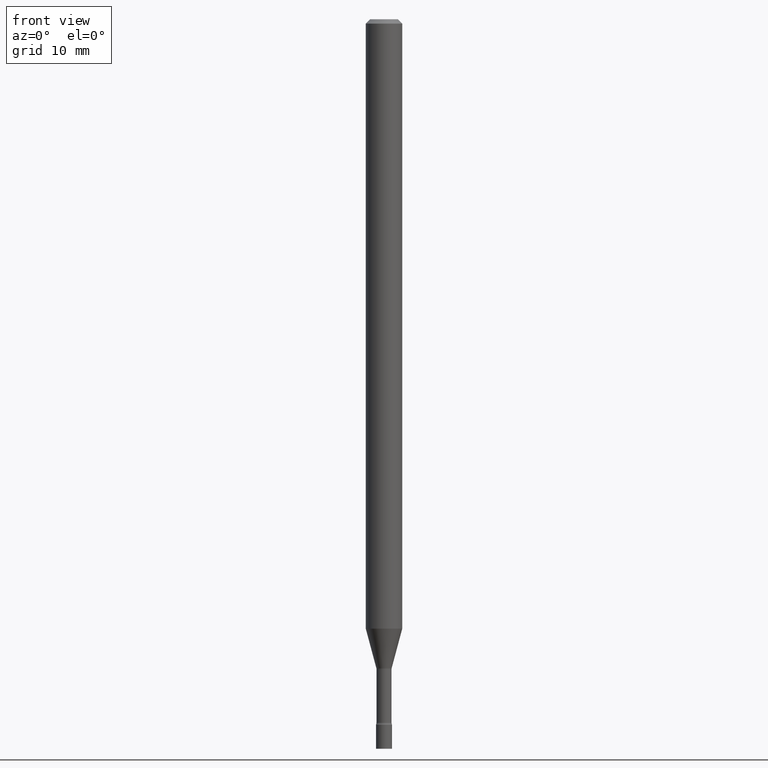
[diagram: clean part render]
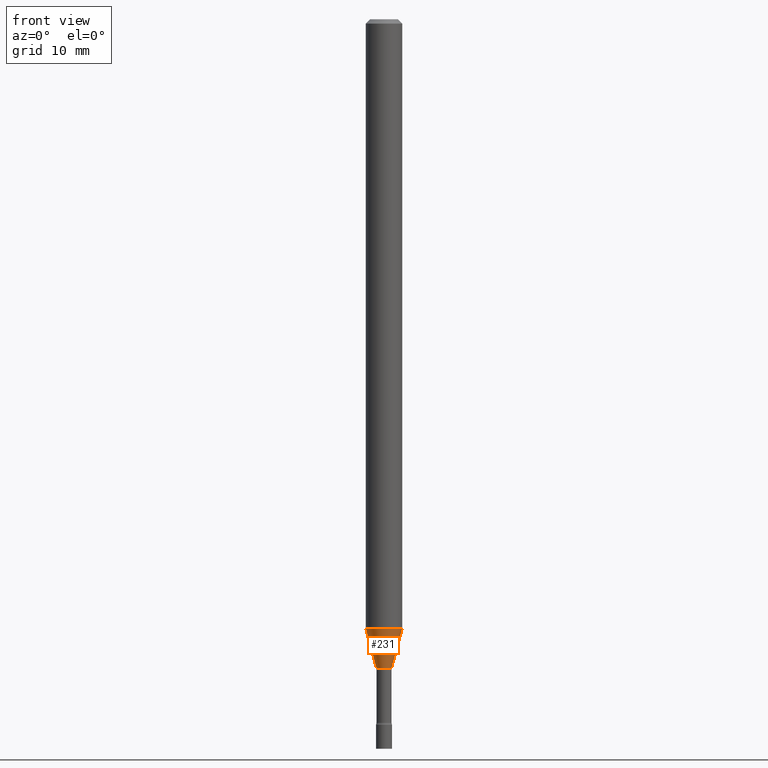
[diagram: same view with one face highlighted and labeled with its STEP entity id]
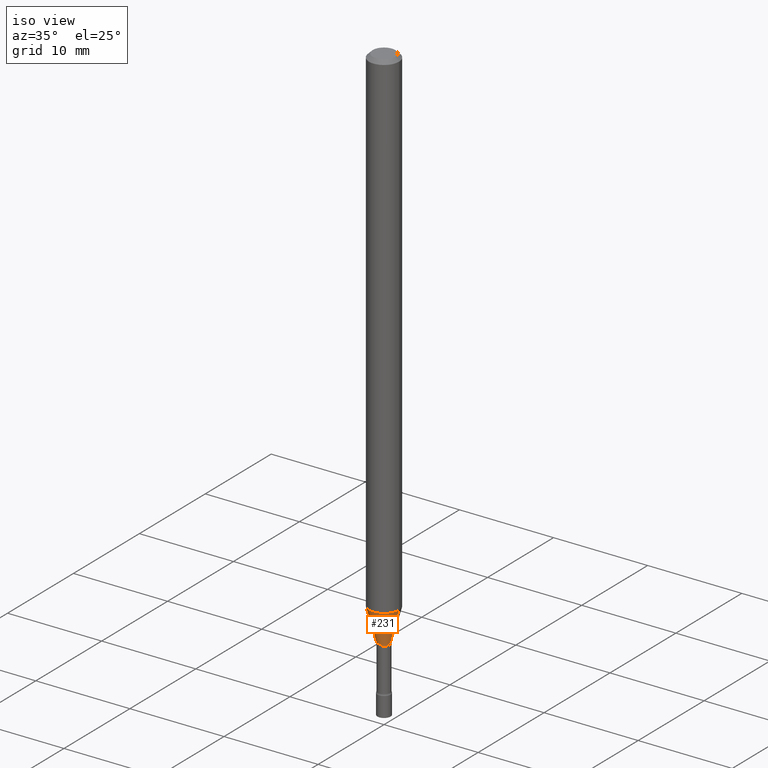
[diagram: same view with one face highlighted and labeled with its STEP entity id]
A machine part, front view. The second image highlights one B-rep face of the part: STEP entity #231.
A second angle (iso view) of the same face is appended — the face is thin or edge-on in the first view.
In plain terms, the highlighted conical surface has half-angle 15 deg.
Its self-contained STEP definition (entity closure, byte-faithful):
#33 = LINE ( 'NONE', #195, #482 ) ;
#42 = DIRECTION ( 'NONE',  ( 1.000000000000000000, -6.982962677686256455E-15, 0.000000000000000000 ) ) ;
#63 = VECTOR ( 'NONE', #118, 39.37007874015748143 ) ;
#87 = EDGE_CURVE ( 'NONE', #418, #493, #237, .T. ) ;
#97 = VERTEX_POINT ( 'NONE', #473 ) ;
#98 = EDGE_CURVE ( 'NONE', #207, #97, #33, .T. ) ;
#108 = CARTESIAN_POINT ( 'NONE',  ( -0.02636111260566398329, -7.210736072578448684E-15, -2.223092501787273356 ) ) ;
#118 = DIRECTION ( 'NONE',  ( -0.2588190451025210170, 5.211531920934547886E-15, 0.9659258262890682012 ) ) ;
#123 = DIRECTION ( 'NONE',  ( 1.000000000000000000, -6.982962677686262766E-15, 0.000000000000000000 ) ) ;
#143 = FACE_OUTER_BOUND ( 'NONE', #264, .T. ) ;
#149 = EDGE_CURVE ( 'NONE', #493, #97, #308, .T. ) ;
#162 = CARTESIAN_POINT ( 'NONE',  ( 5.106677696782196948E-29, -7.290982341179659020E-15, -2.088220337902600754 ) ) ;
#167 = CONICAL_SURFACE ( 'NONE', #323, 0.02636111260566398329, 0.2617993877991496854 ) ;
#183 = EDGE_CURVE ( 'NONE', #418, #207, #247, .T. ) ;
#195 = CARTESIAN_POINT ( 'NONE',  ( 0.02636111260566398329, -7.945964649980022290E-15, -2.223092501787273356 ) ) ;
#207 = VERTEX_POINT ( 'NONE', #325 ) ;
#212 = ORIENTED_EDGE ( 'NONE', *, *, #149, .F. ) ;
#226 = CARTESIAN_POINT ( 'NONE',  ( -0.06250000000000000000, -6.846893131329596403E-15, -2.088220337902600754 ) ) ;
#231 = ADVANCED_FACE ( 'NONE', ( #143 ), #167, .T. ) ;
#237 = LINE ( 'NONE', #285, #63 ) ;
#247 = CIRCLE ( 'NONE', #261, 0.02636111260566398329 ) ;
#261 = AXIS2_PLACEMENT_3D ( 'NONE', #514, #399, #42 ) ;
#264 = EDGE_LOOP ( 'NONE', ( #379, #447, #406, #212 ) ) ;
#285 = CARTESIAN_POINT ( 'NONE',  ( -0.02636111260566398329, -7.574579013827300965E-15, -2.223092501787273356 ) ) ;
#308 = CIRCLE ( 'NONE', #316, 0.06250000000000000000 ) ;
#316 = AXIS2_PLACEMENT_3D ( 'NONE', #162, #394, #123 ) ;
#323 = AXIS2_PLACEMENT_3D ( 'NONE', #328, #492, #402 ) ;
#325 = CARTESIAN_POINT ( 'NONE',  ( 0.02636111260566398329, -7.945964649980022290E-15, -2.223092501787273356 ) ) ;
#328 = CARTESIAN_POINT ( 'NONE',  ( 5.436503366384851670E-29, -7.761885984512386463E-15, -2.223092501787273356 ) ) ;
#379 = ORIENTED_EDGE ( 'NONE', *, *, #87, .F. ) ;
#394 = DIRECTION ( 'NONE',  ( -2.445468806185136597E-29, 3.491481338843145583E-15, 1.000000000000000000 ) ) ;
#395 = DIRECTION ( 'NONE',  ( 0.2588190451025210170, 1.565188264969624531E-15, 0.9659258262890682012 ) ) ;
#399 = DIRECTION ( 'NONE',  ( -2.445468806185136597E-29, 3.491481338843145583E-15, 1.000000000000000000 ) ) ;
#402 = DIRECTION ( 'NONE',  ( 1.000000000000000000, -6.982962677686256455E-15, 0.000000000000000000 ) ) ;
#406 = ORIENTED_EDGE ( 'NONE', *, *, #98, .T. ) ;
#418 = VERTEX_POINT ( 'NONE', #108 ) ;
#447 = ORIENTED_EDGE ( 'NONE', *, *, #183, .T. ) ;
#473 = CARTESIAN_POINT ( 'NONE',  ( 0.06250000000000000000, -7.727417508535050689E-15, -2.088220337902600754 ) ) ;
#482 = VECTOR ( 'NONE', #395, 39.37007874015748143 ) ;
#492 = DIRECTION ( 'NONE',  ( -2.445468806185136597E-29, 3.491481338843145583E-15, 1.000000000000000000 ) ) ;
#493 = VERTEX_POINT ( 'NONE', #226 ) ;
#514 = CARTESIAN_POINT ( 'NONE',  ( 5.436503366384851670E-29, -7.761885984512386463E-15, -2.223092501787273356 ) ) ;